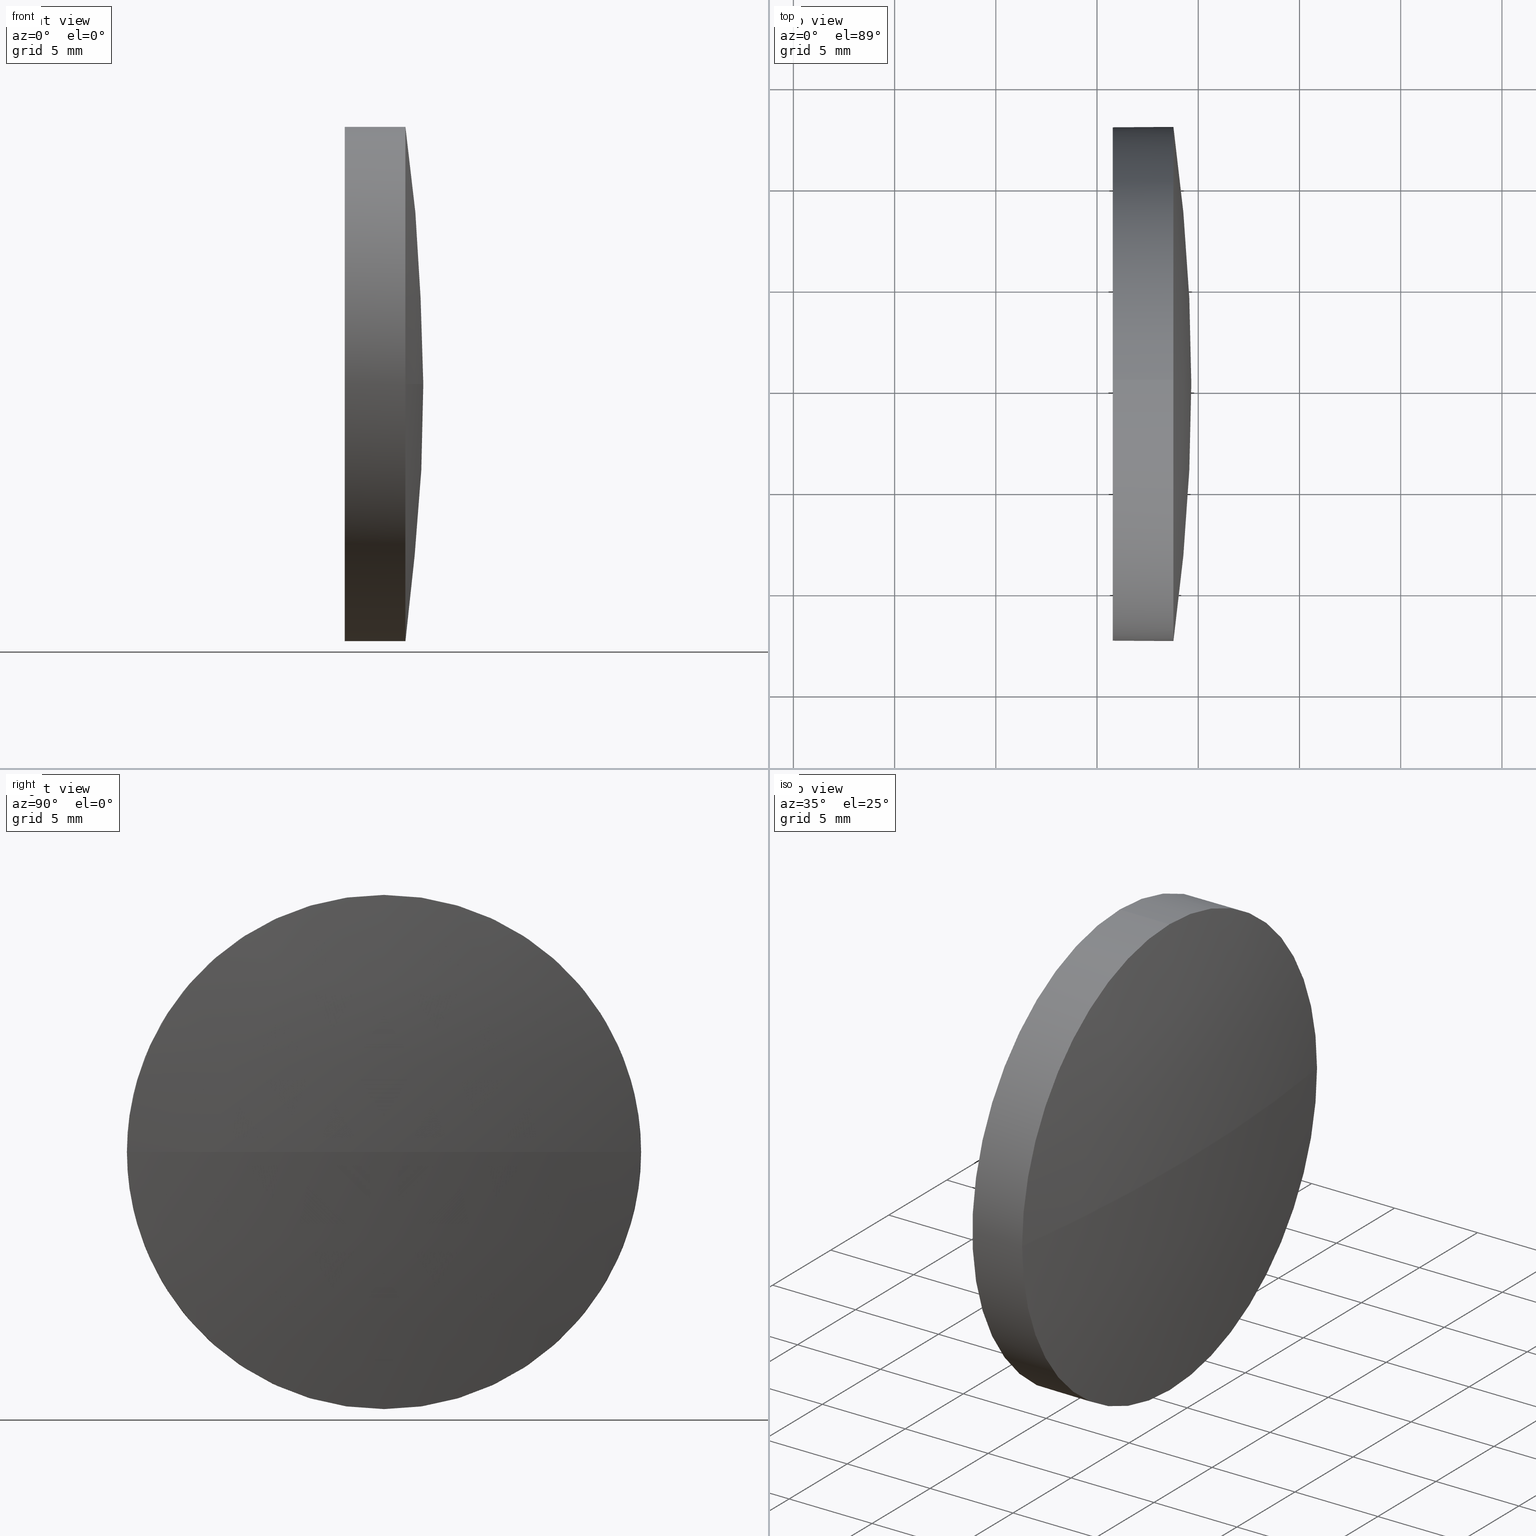
[diagram: canonical four-view strip — front | top / right | iso, engineering-drawing reading convention]
A machine part, canonical four-view strip (front | top / right | iso — engineering-drawing reading convention). The complete STEP part file that produces these views, byte-faithful:
ISO-10303-21;
HEADER;
FILE_DESCRIPTION (( 'STEP AP214' ),
    '1' );
FILE_NAME ('400003.STEP',
    '2019-08-21T02:58:16',
    ( '' ),
    ( '' ),
    'SwSTEP 2.0',
    'SolidWorks 2016',
    '' );
FILE_SCHEMA (( 'AUTOMOTIVE_DESIGN' ));
ENDSEC;

DATA;
#1 = CARTESIAN_POINT ( 'NONE',  ( 118.7738765174393800, 65.23355492641219700, 0.0000000000000000000 ) ) ;
#2 = SURFACE_STYLE_FILL_AREA ( #63 ) ;
#3 = DIRECTION ( 'NONE',  ( 0.0000000000000000000, 1.224646799147353200E-016, -1.000000000000000000 ) ) ;
#4 = CARTESIAN_POINT ( 'NONE',  ( 118.7738765174393800, 65.23355492641219700, 0.0000000000000000000 ) ) ;
#5 = DIRECTION ( 'NONE',  ( -1.000000000000000000, -0.0000000000000000000, -0.0000000000000000000 ) ) ;
#6 = AXIS2_PLACEMENT_3D ( 'NONE', #106, #137, #122 ) ;
#7 = CARTESIAN_POINT ( 'NONE',  ( 27.85660643083812700, 65.23355492641219700, 0.0000000000000000000 ) ) ;
#8 = FILL_AREA_STYLE_COLOUR ( '', #48 ) ;
#9 = SPHERICAL_SURFACE ( 'NONE', #28, 91.79999999999999700 ) ;
#10 = ORIENTED_EDGE ( 'NONE', *, *, #88, .T. ) ;
#11 =( NAMED_UNIT ( * ) SI_UNIT ( $, .STERADIAN. ) SOLID_ANGLE_UNIT ( ) );
#12 = ORIENTED_EDGE ( 'NONE', *, *, #138, .T. ) ;
#13 =( NAMED_UNIT ( * ) PLANE_ANGLE_UNIT ( ) SI_UNIT ( $, .RADIAN. ) );
#14 = LINE ( 'NONE', #85, #147 ) ;
#15 = VERTEX_POINT ( 'NONE', #171 ) ;
#16 = ADVANCED_FACE ( 'NONE', ( #25 ), #175, .T. ) ;
#17 = AXIS2_PLACEMENT_3D ( 'NONE', #97, #176, #76 ) ;
#18 = DIRECTION ( 'NONE',  ( -1.000000000000000000, -0.0000000000000000000, -0.0000000000000000000 ) ) ;
#19 = FACE_OUTER_BOUND ( 'NONE', #115, .T. ) ;
#20 = DIRECTION ( 'NONE',  ( 0.0000000000000000000, 1.000000000000000000, 0.0000000000000000000 ) ) ;
#21 = CIRCLE ( 'NONE', #173, 91.79999999999999700 ) ;
#22 = CARTESIAN_POINT ( 'NONE',  ( 115.7736064308381300, 65.23355492641219700, 0.0000000000000000000 ) ) ;
#23 = VERTEX_POINT ( 'NONE', #135 ) ;
#24 =( NAMED_UNIT ( * ) PLANE_ANGLE_UNIT ( ) SI_UNIT ( $, .RADIAN. ) );
#25 = FACE_OUTER_BOUND ( 'NONE', #132, .T. ) ;
#26 = STYLED_ITEM ( 'NONE', ( #53 ), #145 ) ;
#27 = ORIENTED_EDGE ( 'NONE', *, *, #113, .F. ) ;
#28 = AXIS2_PLACEMENT_3D ( 'NONE', #163, #37, #47 ) ;
#29 = FACE_OUTER_BOUND ( 'NONE', #157, .T. ) ;
#30 = PRODUCT_DEFINITION ( 'δ֪', '', #159, #153 ) ;
#31 = ORIENTED_EDGE ( 'NONE', *, *, #81, .F. ) ;
#32 = CIRCLE ( 'NONE', #142, 12.70000000000000300 ) ;
#33 = VERTEX_POINT ( 'NONE', #57 ) ;
#34 = MECHANICAL_DESIGN_GEOMETRIC_PRESENTATION_REPRESENTATION (  '', ( #26 ), #180 ) ;
#35 = CARTESIAN_POINT ( 'NONE',  ( 0.0000000000000000000, 0.0000000000000000000, 0.0000000000000000000 ) ) ;
#36 =( NAMED_UNIT ( * ) SI_UNIT ( $, .STERADIAN. ) SOLID_ANGLE_UNIT ( ) );
#37 = DIRECTION ( 'NONE',  ( -0.0000000000000000000, 0.0000000000000000000, -1.000000000000000000 ) ) ;
#38 = AXIS2_PLACEMENT_3D ( 'NONE', #117, #151, #72 ) ;
#39 = SURFACE_STYLE_USAGE ( .BOTH. , #95 ) ;
#40 = DIRECTION ( 'NONE',  ( 1.000000000000000000, 0.0000000000000000000, 0.0000000000000000000 ) ) ;
#41 = CIRCLE ( 'NONE', #38, 12.70000000000000300 ) ;
#42 = DIRECTION ( 'NONE',  ( 1.000000000000000000, 0.0000000000000000000, 0.0000000000000000000 ) ) ;
#43 = FACE_OUTER_BOUND ( 'NONE', #111, .T. ) ;
#44 = CARTESIAN_POINT ( 'NONE',  ( 27.85660643083812700, 65.23355492641219700, 0.0000000000000000000 ) ) ;
#45 = VERTEX_POINT ( 'NONE', #73 ) ;
#46 = EDGE_CURVE ( 'NONE', #15, #152, #62, .T. ) ;
#47 = DIRECTION ( 'NONE',  ( 0.0000000000000000000, 1.000000000000000000, 0.0000000000000000000 ) ) ;
#48 = COLOUR_RGB ( '',1.000000000000000000, 1.000000000000000000, 1.000000000000000000 ) ;
#49 = APPLICATION_CONTEXT ( 'automotive_design' ) ;
#50 = ORIENTED_EDGE ( 'NONE', *, *, #46, .F. ) ;
#51 = PRODUCT_CONTEXT ( 'NONE', #49, 'mechanical' ) ;
#52 = UNCERTAINTY_MEASURE_WITH_UNIT (LENGTH_MEASURE( 1.000000000000000100E-005 ), #82, 'distance_accuracy_value', 'NONE');
#53 = PRESENTATION_STYLE_ASSIGNMENT (( #39 ) ) ;
#54 = CIRCLE ( 'NONE', #146, 91.79999999999999700 ) ;
#55 = EDGE_CURVE ( 'NONE', #152, #89, #32, .T. ) ;
#56 = PRODUCT_DEFINITION_SHAPE ( 'NONE', 'NONE',  #30 ) ;
#57 = CARTESIAN_POINT ( 'NONE',  ( 118.7738765174393800, 65.23355492641219700, 12.70000000000000300 ) ) ;
#58 = VERTEX_POINT ( 'NONE', #92 ) ;
#59 = AXIS2_PLACEMENT_3D ( 'NONE', #35, #78, #40 ) ;
#60 = CYLINDRICAL_SURFACE ( 'NONE', #96, 12.70000000000000300 ) ;
#61 = DIRECTION ( 'NONE',  ( -1.000000000000000000, -0.0000000000000000000, -0.0000000000000000000 ) ) ;
#62 = CIRCLE ( 'NONE', #165, 12.70000000000000300 ) ;
#63 = FILL_AREA_STYLE ('',( #8 ) ) ;
#64 = CARTESIAN_POINT ( 'NONE',  ( 118.7738765174393800, 65.23355492641219700, -12.70000000000000300 ) ) ;
#65 = FILL_AREA_STYLE_COLOUR ( '', #186 ) ;
#66 = CARTESIAN_POINT ( 'NONE',  ( 110.1653732284884500, 65.23355492641219700, 0.0000000000000000000 ) ) ;
#67 = DIRECTION ( 'NONE',  ( -0.0000000000000000000, 0.0000000000000000000, 1.000000000000000000 ) ) ;
#68 = ORIENTED_EDGE ( 'NONE', *, *, #46, .T. ) ;
#69 = ORIENTED_EDGE ( 'NONE', *, *, #130, .T. ) ;
#70 = ORIENTED_EDGE ( 'NONE', *, *, #55, .T. ) ;
#71 = ORIENTED_EDGE ( 'NONE', *, *, #127, .F. ) ;
#72 = DIRECTION ( 'NONE',  ( 0.0000000000000000000, 0.0000000000000000000, 1.000000000000000000 ) ) ;
#73 = CARTESIAN_POINT ( 'NONE',  ( 115.7736064308381300, 65.23355492641219700, -12.70000000000000300 ) ) ;
#74 = DIRECTION ( 'NONE',  ( 0.0000000000000000000, 0.0000000000000000000, 1.000000000000000000 ) ) ;
#75 = SURFACE_STYLE_USAGE ( .BOTH. , #158 ) ;
#76 = DIRECTION ( 'NONE',  ( 0.0000000000000000000, 0.0000000000000000000, 1.000000000000000000 ) ) ;
#77 = DIRECTION ( 'NONE',  ( 1.000000000000000000, 0.0000000000000000000, 0.0000000000000000000 ) ) ;
#78 = DIRECTION ( 'NONE',  ( 0.0000000000000000000, 0.0000000000000000000, 1.000000000000000000 ) ) ;
#79 = ORIENTED_EDGE ( 'NONE', *, *, #168, .F. ) ;
#80 = CIRCLE ( 'NONE', #6, 12.70000000000000300 ) ;
#81 = EDGE_CURVE ( 'NONE', #33, #23, #166, .T. ) ;
#82 =( LENGTH_UNIT ( ) NAMED_UNIT ( * ) SI_UNIT ( .MILLI., .METRE. ) );
#83 = ORIENTED_EDGE ( 'NONE', *, *, #168, .T. ) ;
#84 =( LENGTH_UNIT ( ) NAMED_UNIT ( * ) SI_UNIT ( .MILLI., .METRE. ) );
#85 = CARTESIAN_POINT ( 'NONE',  ( 110.1653732284884500, 65.23355492641219700, -12.70000000000000300 ) ) ;
#86 = FILL_AREA_STYLE ('',( #65 ) ) ;
#87 = VECTOR ( 'NONE', #156, 1000.000000000000000 ) ;
#88 = EDGE_CURVE ( 'NONE', #45, #23, #41, .T. ) ;
#89 = VERTEX_POINT ( 'NONE', #169 ) ;
#90 = ADVANCED_BREP_SHAPE_REPRESENTATION ( '400003', ( #145, #59 ), #150 ) ;
#91 = CARTESIAN_POINT ( 'NONE',  ( 118.7738765174393800, 65.23355492641219700, 0.0000000000000000000 ) ) ;
#92 = CARTESIAN_POINT ( 'NONE',  ( 119.6566064308381100, 65.23355492641219700, 0.0000000000000000000 ) ) ;
#93 = CARTESIAN_POINT ( 'NONE',  ( 110.1653732284884500, 65.23355492641219700, 12.70000000000000300 ) ) ;
#94 = ORIENTED_EDGE ( 'NONE', *, *, #130, .F. ) ;
#95 = SURFACE_SIDE_STYLE ('',( #116 ) ) ;
#96 = AXIS2_PLACEMENT_3D ( 'NONE', #66, #160, #139 ) ;
#97 = CARTESIAN_POINT ( 'NONE',  ( 110.1653732284884500, 65.23355492641219700, 0.0000000000000000000 ) ) ;
#98 =( NAMED_UNIT ( * ) PLANE_ANGLE_UNIT ( ) SI_UNIT ( $, .RADIAN. ) );
#99 = ADVANCED_FACE ( 'NONE', ( #43 ), #101, .F. ) ;
#100 = AXIS2_PLACEMENT_3D ( 'NONE', #22, #42, #133 ) ;
#101 = PLANE ( 'NONE',  #100 ) ;
#102 = DIRECTION ( 'NONE',  ( -0.0000000000000000000, 0.0000000000000000000, -1.000000000000000000 ) ) ;
#103 = CIRCLE ( 'NONE', #155, 12.70000000000000300 ) ;
#104 = EDGE_CURVE ( 'NONE', #58, #89, #54, .T. ) ;
#105 = DIRECTION ( 'NONE',  ( 0.0000000000000000000, 0.0000000000000000000, 1.000000000000000000 ) ) ;
#106 = CARTESIAN_POINT ( 'NONE',  ( 115.7736064308381300, 65.23355492641219700, 0.0000000000000000000 ) ) ;
#107 = UNCERTAINTY_MEASURE_WITH_UNIT (LENGTH_MEASURE( 1.000000000000000100E-005 ), #84, 'distance_accuracy_value', 'NONE');
#108 = DIRECTION ( 'NONE',  ( -1.000000000000000000, -0.0000000000000000000, -0.0000000000000000000 ) ) ;
#109 = ORIENTED_EDGE ( 'NONE', *, *, #127, .T. ) ;
#110 = PRESENTATION_LAYER_ASSIGNMENT (  '', '', ( #184 ) ) ;
#111 = EDGE_LOOP ( 'NONE', ( #83, #10 ) ) ;
#112 = APPLICATION_PROTOCOL_DEFINITION ( 'draft international standard', 'automotive_design', 1998, #179 ) ;
#113 = EDGE_CURVE ( 'NONE', #152, #45, #14, .T. ) ;
#114 = ORIENTED_EDGE ( 'NONE', *, *, #104, .F. ) ;
#115 = EDGE_LOOP ( 'NONE', ( #27, #70, #12, #149, #178 ) ) ;
#116 = SURFACE_STYLE_FILL_AREA ( #86 ) ;
#117 = CARTESIAN_POINT ( 'NONE',  ( 115.7736064308381300, 65.23355492641219700, 0.0000000000000000000 ) ) ;
#118 = MECHANICAL_DESIGN_GEOMETRIC_PRESENTATION_REPRESENTATION (  '', ( #184 ), #141 ) ;
#119 = APPLICATION_PROTOCOL_DEFINITION ( 'draft international standard', 'automotive_design', 1998, #49 ) ;
#120 = PRODUCT_RELATED_PRODUCT_CATEGORY ( 'part', '', ( #183 ) ) ;
#121 = DIRECTION ( 'NONE',  ( -1.000000000000000000, -0.0000000000000000000, -0.0000000000000000000 ) ) ;
#122 = DIRECTION ( 'NONE',  ( 0.0000000000000000000, 0.0000000000000000000, 1.000000000000000000 ) ) ;
#123 = PRESENTATION_LAYER_ASSIGNMENT (  '', '', ( #26 ) ) ;
#124 =( LENGTH_UNIT ( ) NAMED_UNIT ( * ) SI_UNIT ( .MILLI., .METRE. ) );
#125 = CIRCLE ( 'NONE', #161, 12.70000000000000300 ) ;
#126 = ORIENTED_EDGE ( 'NONE', *, *, #138, .F. ) ;
#127 = EDGE_CURVE ( 'NONE', #58, #15, #21, .T. ) ;
#128 = UNCERTAINTY_MEASURE_WITH_UNIT (LENGTH_MEASURE( 1.000000000000000100E-005 ), #124, 'distance_accuracy_value', 'NONE');
#129 = AXIS2_PLACEMENT_3D ( 'NONE', #44, #102, #20 ) ;
#130 = EDGE_CURVE ( 'NONE', #33, #15, #103, .T. ) ;
#131 = ADVANCED_FACE ( 'NONE', ( #164 ), #60, .T. ) ;
#132 = EDGE_LOOP ( 'NONE', ( #114, #109, #94, #126 ) ) ;
#133 = DIRECTION ( 'NONE',  ( 0.0000000000000000000, 0.0000000000000000000, -1.000000000000000000 ) ) ;
#134 = EDGE_LOOP ( 'NONE', ( #68, #144, #79, #31, #69 ) ) ;
#135 = CARTESIAN_POINT ( 'NONE',  ( 115.7736064308381300, 65.23355492641219700, 12.70000000000000300 ) ) ;
#136 = DIRECTION ( 'NONE',  ( 0.0000000000000000000, 0.0000000000000000000, 1.000000000000000000 ) ) ;
#137 = DIRECTION ( 'NONE',  ( -1.000000000000000000, -0.0000000000000000000, -0.0000000000000000000 ) ) ;
#138 = EDGE_CURVE ( 'NONE', #89, #33, #125, .T. ) ;
#139 = DIRECTION ( 'NONE',  ( 0.0000000000000000000, 0.0000000000000000000, 1.000000000000000000 ) ) ;
#140 = DIRECTION ( 'NONE',  ( 0.0000000000000000000, 1.000000000000000000, 1.224646799147353200E-016 ) ) ;
#141 =( GEOMETRIC_REPRESENTATION_CONTEXT ( 3 ) GLOBAL_UNCERTAINTY_ASSIGNED_CONTEXT ( ( #52 ) ) GLOBAL_UNIT_ASSIGNED_CONTEXT ( ( #82, #13, #11 ) ) REPRESENTATION_CONTEXT ( 'NONE', 'WORKASPACE' ) );
#142 = AXIS2_PLACEMENT_3D ( 'NONE', #1, #18, #74 ) ;
#143 = PRESENTATION_STYLE_ASSIGNMENT (( #75 ) ) ;
#144 = ORIENTED_EDGE ( 'NONE', *, *, #113, .T. ) ;
#145 = MANIFOLD_SOLID_BREP ( '��ת1', #154 ) ;
#146 = AXIS2_PLACEMENT_3D ( 'NONE', #162, #3, #140 ) ;
#147 = VECTOR ( 'NONE', #121, 1000.000000000000000 ) ;
#148 = ADVANCED_FACE ( 'NONE', ( #19 ), #181, .T. ) ;
#149 = ORIENTED_EDGE ( 'NONE', *, *, #81, .T. ) ;
#150 =( GEOMETRIC_REPRESENTATION_CONTEXT ( 3 ) GLOBAL_UNCERTAINTY_ASSIGNED_CONTEXT ( ( #107 ) ) GLOBAL_UNIT_ASSIGNED_CONTEXT ( ( #84, #98, #177 ) ) REPRESENTATION_CONTEXT ( 'NONE', 'WORKASPACE' ) );
#151 = DIRECTION ( 'NONE',  ( -1.000000000000000000, -0.0000000000000000000, -0.0000000000000000000 ) ) ;
#152 = VERTEX_POINT ( 'NONE', #64 ) ;
#153 = PRODUCT_DEFINITION_CONTEXT ( 'detailed design', #179, 'design' ) ;
#154 = CLOSED_SHELL ( 'NONE', ( #131, #182, #16, #148, #99 ) ) ;
#155 = AXIS2_PLACEMENT_3D ( 'NONE', #4, #5, #174 ) ;
#156 = DIRECTION ( 'NONE',  ( -1.000000000000000000, -0.0000000000000000000, -0.0000000000000000000 ) ) ;
#157 = EDGE_LOOP ( 'NONE', ( #71, #170, #185, #50 ) ) ;
#158 = SURFACE_SIDE_STYLE ('',( #2 ) ) ;
#159 = PRODUCT_DEFINITION_FORMATION_WITH_SPECIFIED_SOURCE ( '�κ�', '', #183, .NOT_KNOWN. ) ;
#160 = DIRECTION ( 'NONE',  ( -1.000000000000000000, -0.0000000000000000000, -0.0000000000000000000 ) ) ;
#161 = AXIS2_PLACEMENT_3D ( 'NONE', #172, #108, #105 ) ;
#162 = CARTESIAN_POINT ( 'NONE',  ( 27.85660643083812700, 65.23355492641219700, 0.0000000000000000000 ) ) ;
#163 = CARTESIAN_POINT ( 'NONE',  ( 27.85660643083812700, 65.23355492641219700, 0.0000000000000000000 ) ) ;
#164 = FACE_OUTER_BOUND ( 'NONE', #134, .T. ) ;
#165 = AXIS2_PLACEMENT_3D ( 'NONE', #91, #61, #136 ) ;
#166 = LINE ( 'NONE', #93, #87 ) ;
#167 = SHAPE_DEFINITION_REPRESENTATION ( #56, #90 ) ;
#168 = EDGE_CURVE ( 'NONE', #23, #45, #80, .T. ) ;
#169 = CARTESIAN_POINT ( 'NONE',  ( 118.7738765174393800, 52.53355492641216500, -1.555301434917142000E-015 ) ) ;
#170 = ORIENTED_EDGE ( 'NONE', *, *, #104, .T. ) ;
#171 = CARTESIAN_POINT ( 'NONE',  ( 118.7738765174393800, 77.93355492641222800, 0.0000000000000000000 ) ) ;
#172 = CARTESIAN_POINT ( 'NONE',  ( 118.7738765174393800, 65.23355492641219700, 0.0000000000000000000 ) ) ;
#173 = AXIS2_PLACEMENT_3D ( 'NONE', #7, #67, #77 ) ;
#174 = DIRECTION ( 'NONE',  ( 0.0000000000000000000, 0.0000000000000000000, 1.000000000000000000 ) ) ;
#175 = SPHERICAL_SURFACE ( 'NONE', #129, 91.79999999999999700 ) ;
#176 = DIRECTION ( 'NONE',  ( -1.000000000000000000, -0.0000000000000000000, -0.0000000000000000000 ) ) ;
#177 =( NAMED_UNIT ( * ) SI_UNIT ( $, .STERADIAN. ) SOLID_ANGLE_UNIT ( ) );
#178 = ORIENTED_EDGE ( 'NONE', *, *, #88, .F. ) ;
#179 = APPLICATION_CONTEXT ( 'automotive_design' ) ;
#180 =( GEOMETRIC_REPRESENTATION_CONTEXT ( 3 ) GLOBAL_UNCERTAINTY_ASSIGNED_CONTEXT ( ( #128 ) ) GLOBAL_UNIT_ASSIGNED_CONTEXT ( ( #124, #24, #36 ) ) REPRESENTATION_CONTEXT ( 'NONE', 'WORKASPACE' ) );
#181 = CYLINDRICAL_SURFACE ( 'NONE', #17, 12.70000000000000300 ) ;
#182 = ADVANCED_FACE ( 'NONE', ( #29 ), #9, .T. ) ;
#183 = PRODUCT ( '400003', '400003', '', ( #51 ) ) ;
#184 = STYLED_ITEM ( 'NONE', ( #143 ), #90 ) ;
#185 = ORIENTED_EDGE ( 'NONE', *, *, #55, .F. ) ;
#186 = COLOUR_RGB ( '',1.000000000000000000, 1.000000000000000000, 1.000000000000000000 ) ;
ENDSEC;
END-ISO-10303-21;
